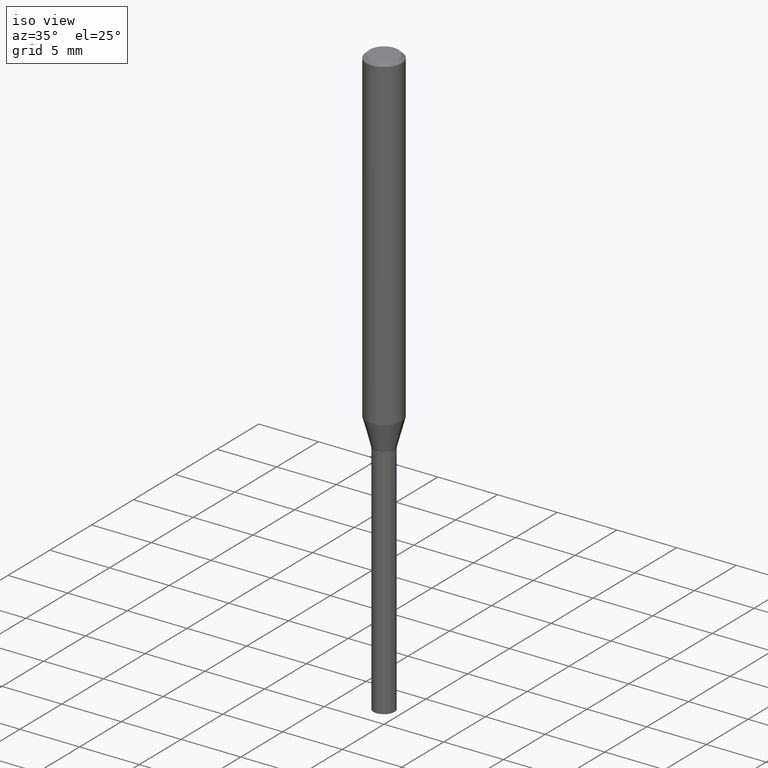
[diagram: clean part render]
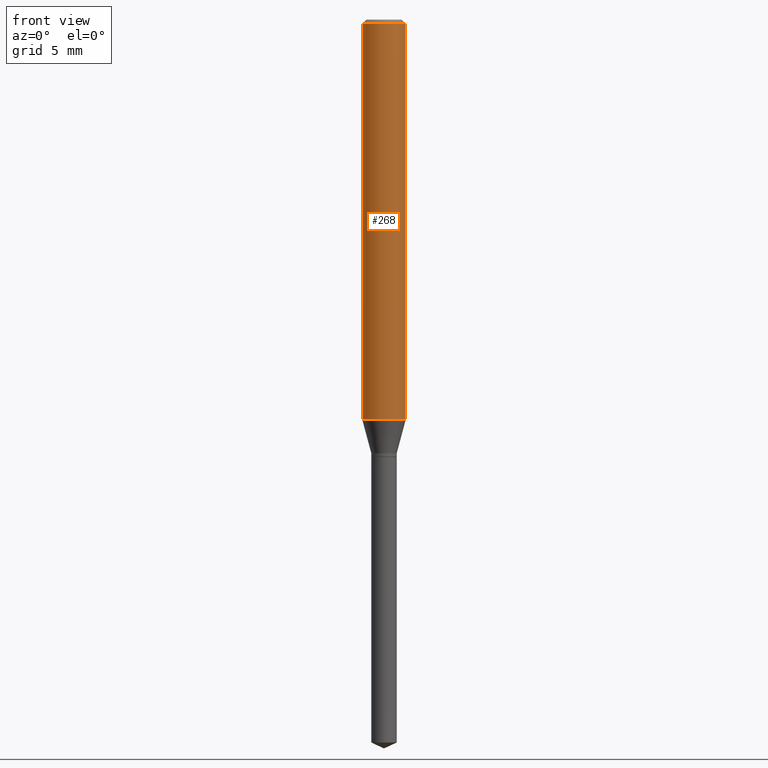
[diagram: tour spotlight — one face highlighted and labeled with its STEP entity id]
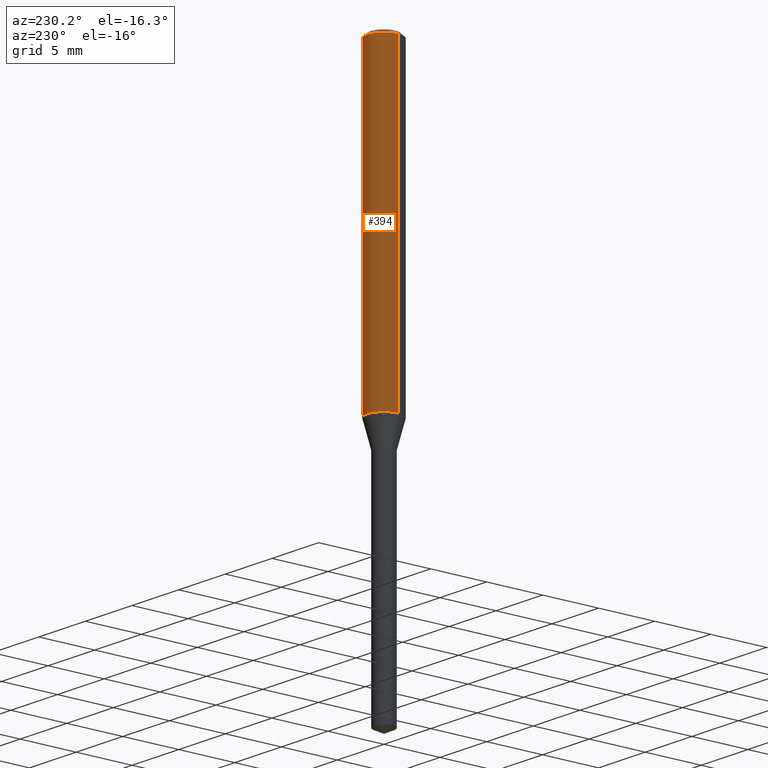
[diagram: tour spotlight — one face highlighted and labeled with its STEP entity id]
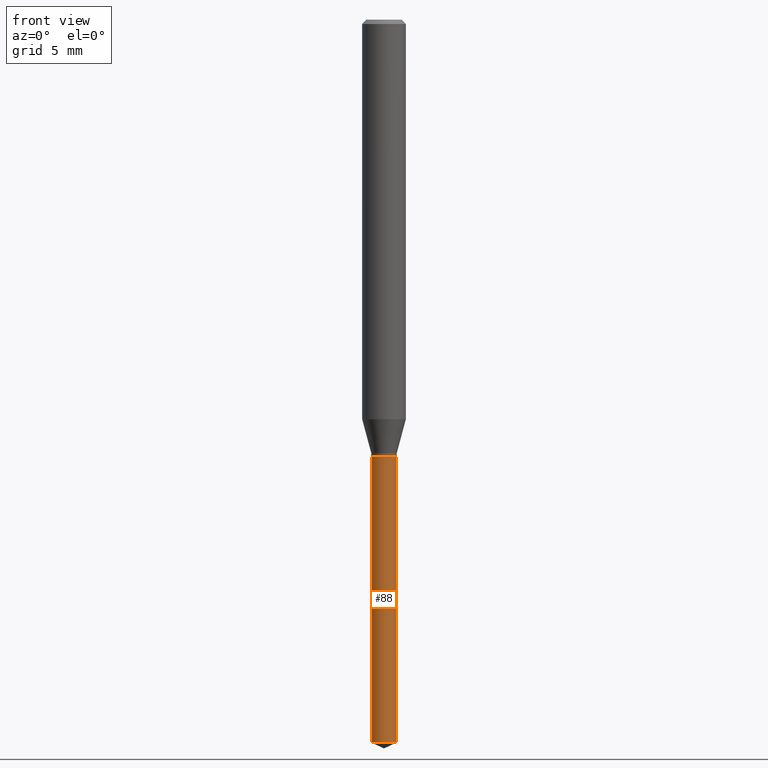
[diagram: tour spotlight — one face highlighted and labeled with its STEP entity id]
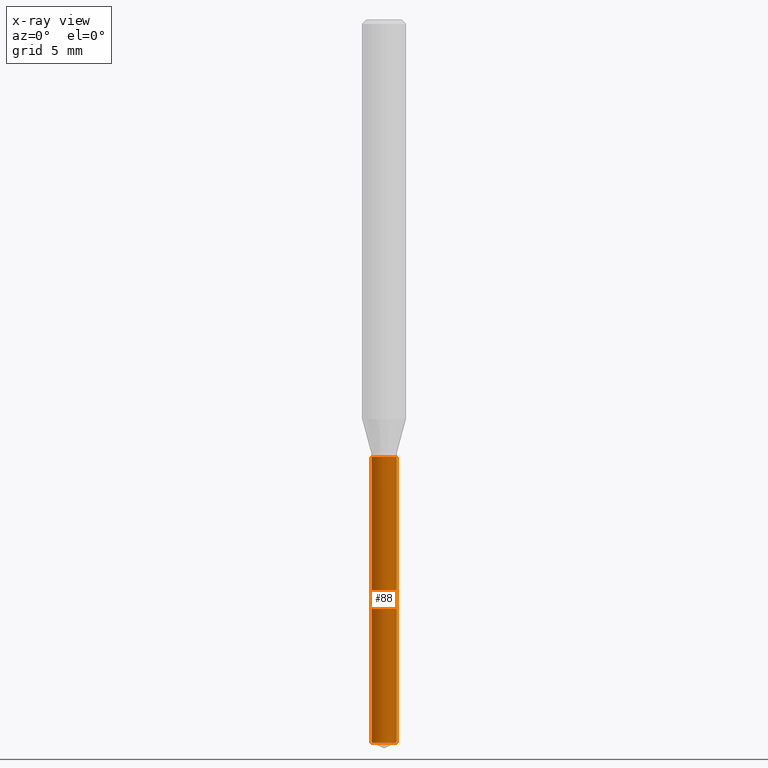
[diagram: x-ray of the same camera — body ghosted, this tour face saturated]
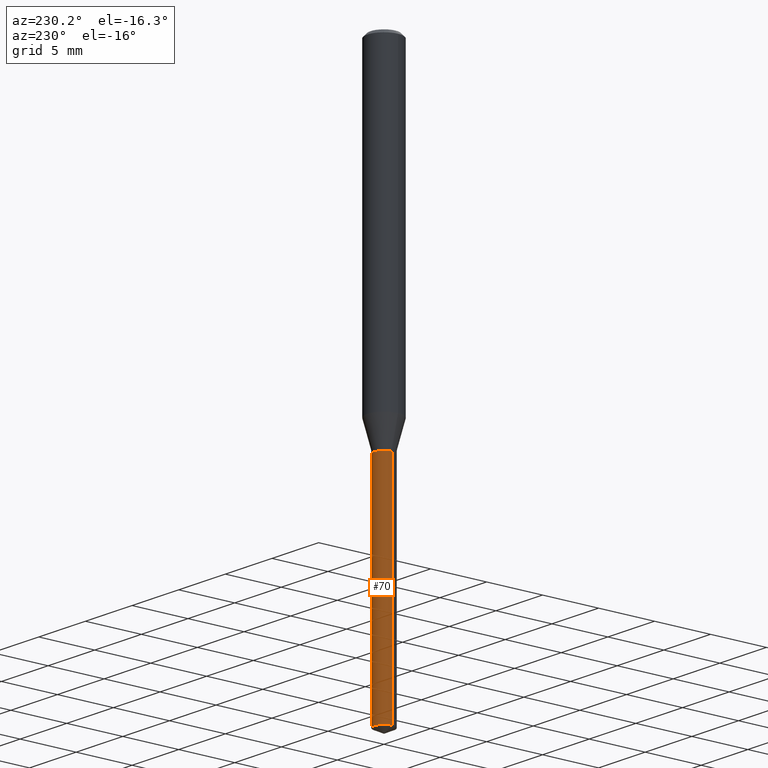
[diagram: tour spotlight — one face highlighted and labeled with its STEP entity id]
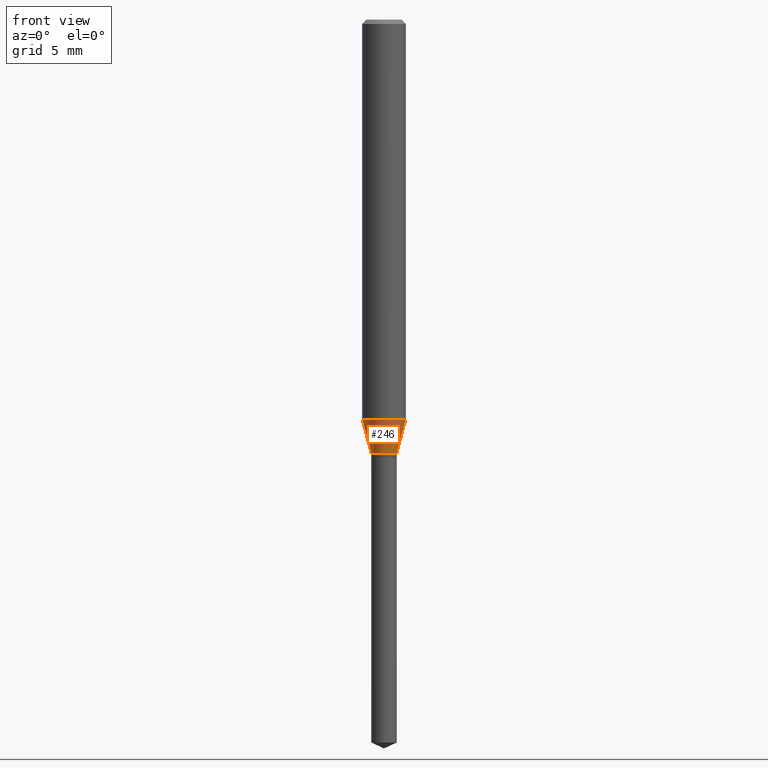
[diagram: tour spotlight — one face highlighted and labeled with its STEP entity id]
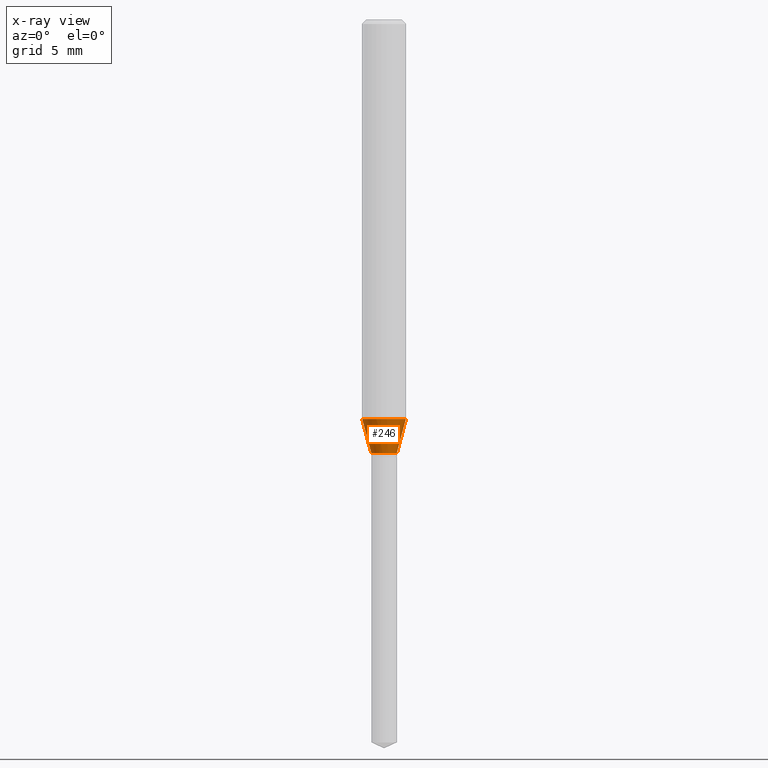
[diagram: x-ray of the same camera — body ghosted, this tour face saturated]
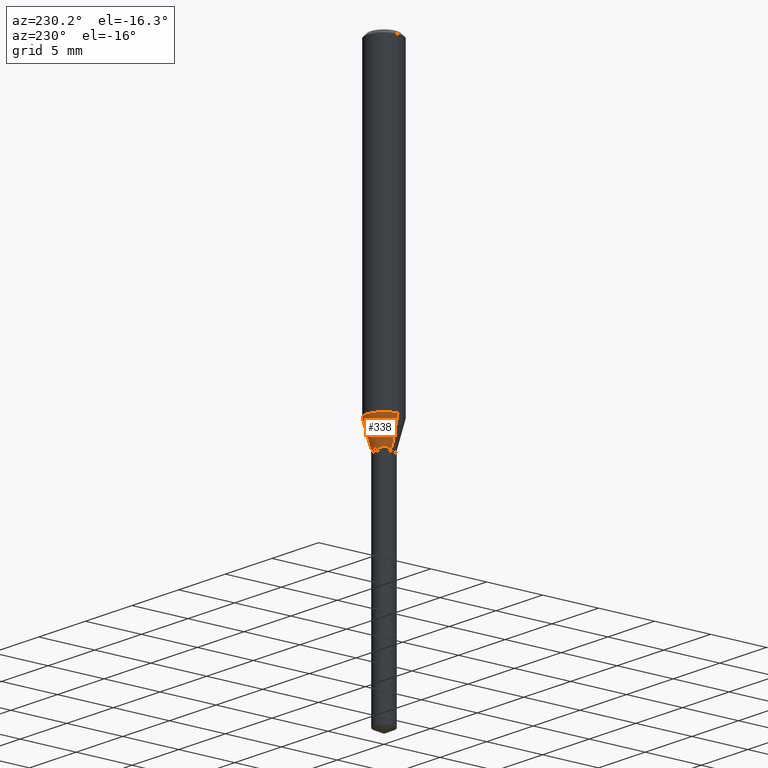
[diagram: tour spotlight — one face highlighted and labeled with its STEP entity id]
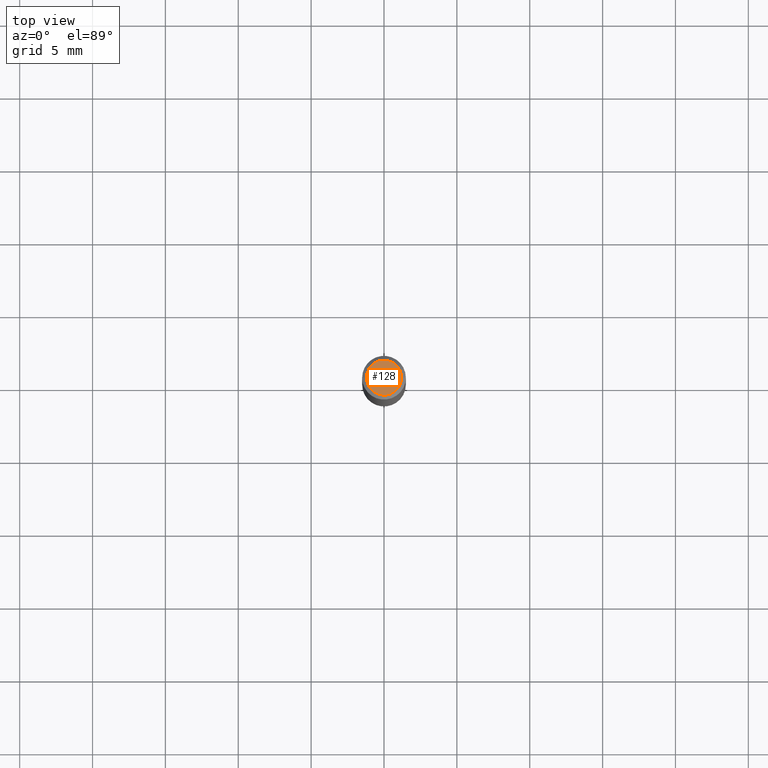
[diagram: tour spotlight — one face highlighted and labeled with its STEP entity id]
A machine part: a face-by-face anatomy tour. The part has 17 B-rep faces; the first image is the clean iso view, then the 7 largest visible faces are spotlighted one at a time (largest first), each with its STEP entity span.

Face 1 — front view, entity #268. In plain terms, the highlighted cylindrical surface (edge-blend (fillet) strip) has radius 1.4999 mm, axis along (-0, 0, 1).
Definition (entity closure, byte-faithful):
#10 = AXIS2_PLACEMENT_3D ( 'NONE', #110, #330, #488 ) ;
#13 = CARTESIAN_POINT ( 'NONE',  ( -0.05905000000000006771, 4.195754854663396409E-16, -2.904631170795525045E-30 ) ) ;
#17 = CARTESIAN_POINT ( 'NONE',  ( 0.05905000000000013710, -4.181368548848415927E-15, -1.079491550133805156 ) ) ;
#26 = VERTEX_POINT ( 'NONE', #134 ) ;
#30 = DIRECTION ( 'NONE',  ( -2.445468806185136877E-29, 3.491481338843145188E-15, 1.000000000000000000 ) ) ;
#35 = AXIS2_PLACEMENT_3D ( 'NONE', #489, #111, #332 ) ;
#48 = VERTEX_POINT ( 'NONE', #17 ) ;
#99 = ORIENTED_EDGE ( 'NONE', *, *, #321, .F. ) ;
#110 = CARTESIAN_POINT ( 'NONE',  ( 0.000000000000000000, 0.000000000000000000, 0.000000000000000000 ) ) ;
#111 = DIRECTION ( 'NONE',  ( -2.445468806185136597E-29, 3.491481338843145583E-15, 1.000000000000000000 ) ) ;
#122 = CIRCLE ( 'NONE', #464, 0.05904999999999999832 ) ;
#134 = CARTESIAN_POINT ( 'NONE',  ( -0.05904999999999999832, -1.485554013205049086E-15, -0.01181000000000007044 ) ) ;
#140 = CIRCLE ( 'NONE', #35, 0.05905000000000013016 ) ;
#145 = CARTESIAN_POINT ( 'NONE',  ( -0.05905000000000013710, -3.349449117264700725E-15, -1.079491550133805156 ) ) ;
#165 = VERTEX_POINT ( 'NONE', #218 ) ;
#173 = EDGE_CURVE ( 'NONE', #256, #48, #140, .T. ) ;
#200 = EDGE_LOOP ( 'NONE', ( #269, #339, #318, #99 ) ) ;
#218 = CARTESIAN_POINT ( 'NONE',  ( 0.05904999999999999832, -4.535783407291118600E-16, -0.01181000000000007044 ) ) ;
#252 = EDGE_CURVE ( 'NONE', #48, #165, #358, .T. ) ;
#256 = VERTEX_POINT ( 'NONE', #145 ) ;
#257 = LINE ( 'NONE', #13, #333 ) ;
#268 = ADVANCED_FACE ( 'NONE', ( #286 ), #484, .T. ) ;
#269 = ORIENTED_EDGE ( 'NONE', *, *, #485, .F. ) ;
#286 = FACE_OUTER_BOUND ( 'NONE', #200, .T. ) ;
#289 = DIRECTION ( 'NONE',  ( -2.445468806185136597E-29, 3.491481338843145583E-15, 1.000000000000000000 ) ) ;
#293 = CARTESIAN_POINT ( 'NONE',  ( 2.888098660104663766E-31, -4.123439461173779647E-17, -0.01181000000000007044 ) ) ;
#318 = ORIENTED_EDGE ( 'NONE', *, *, #252, .T. ) ;
#321 = EDGE_CURVE ( 'NONE', #26, #165, #122, .T. ) ;
#330 = DIRECTION ( 'NONE',  ( -2.445468806185136597E-29, 3.491481338843145583E-15, 1.000000000000000000 ) ) ;
#332 = DIRECTION ( 'NONE',  ( 1.000000000000000000, -6.982962677686265133E-15, 0.000000000000000000 ) ) ;
#333 = VECTOR ( 'NONE', #405, 39.37007874015748143 ) ;
#339 = ORIENTED_EDGE ( 'NONE', *, *, #173, .T. ) ;
#358 = LINE ( 'NONE', #398, #392 ) ;
#392 = VECTOR ( 'NONE', #30, 39.37007874015748143 ) ;
#398 = CARTESIAN_POINT ( 'NONE',  ( 0.05905000000000006771, -4.123439461173745257E-16, 2.879382386107503723E-30 ) ) ;
#405 = DIRECTION ( 'NONE',  ( -2.445468806185136877E-29, 3.491481338843145188E-15, 1.000000000000000000 ) ) ;
#435 = DIRECTION ( 'NONE',  ( 1.000000000000000000, -6.982962677686266711E-15, 0.000000000000000000 ) ) ;
#464 = AXIS2_PLACEMENT_3D ( 'NONE', #293, #289, #435 ) ;
#484 = CYLINDRICAL_SURFACE ( 'NONE', #10, 0.05905000000000006771 ) ;
#485 = EDGE_CURVE ( 'NONE', #256, #26, #257, .T. ) ;
#488 = DIRECTION ( 'NONE',  ( 1.000000000000000000, -6.982962677686266711E-15, 4.876176775795936353E-29 ) ) ;
#489 = CARTESIAN_POINT ( 'NONE',  ( 2.639862912392659236E-29, -3.769024602731041007E-15, -1.079491550133805156 ) ) ;

Face 2 — auxiliary view, entity #394. In plain terms, the highlighted cylindrical surface (edge-blend (fillet) strip) has radius 1.4999 mm, axis along (-0, 0, 1).
Definition (entity closure, byte-faithful):
#2 = DIRECTION ( 'NONE',  ( 1.000000000000000000, -6.982962677686265133E-15, 0.000000000000000000 ) ) ;
#13 = CARTESIAN_POINT ( 'NONE',  ( -0.05905000000000006771, 4.195754854663396409E-16, -2.904631170795525045E-30 ) ) ;
#17 = CARTESIAN_POINT ( 'NONE',  ( 0.05905000000000013710, -4.181368548848415927E-15, -1.079491550133805156 ) ) ;
#21 = EDGE_LOOP ( 'NONE', ( #421, #357, #277, #172 ) ) ;
#26 = VERTEX_POINT ( 'NONE', #134 ) ;
#30 = DIRECTION ( 'NONE',  ( -2.445468806185136877E-29, 3.491481338843145188E-15, 1.000000000000000000 ) ) ;
#33 = DIRECTION ( 'NONE',  ( 1.000000000000000000, -6.982962677686266711E-15, 4.876176775795936353E-29 ) ) ;
#34 = EDGE_CURVE ( 'NONE', #165, #26, #266, .T. ) ;
#46 = CARTESIAN_POINT ( 'NONE',  ( 2.639862912392659236E-29, -3.769024602731041007E-15, -1.079491550133805156 ) ) ;
#48 = VERTEX_POINT ( 'NONE', #17 ) ;
#61 = DIRECTION ( 'NONE',  ( 1.000000000000000000, -6.982962677686266711E-15, 0.000000000000000000 ) ) ;
#63 = AXIS2_PLACEMENT_3D ( 'NONE', #391, #234, #61 ) ;
#98 = CIRCLE ( 'NONE', #272, 0.05905000000000013016 ) ;
#134 = CARTESIAN_POINT ( 'NONE',  ( -0.05904999999999999832, -1.485554013205049086E-15, -0.01181000000000007044 ) ) ;
#145 = CARTESIAN_POINT ( 'NONE',  ( -0.05905000000000013710, -3.349449117264700725E-15, -1.079491550133805156 ) ) ;
#165 = VERTEX_POINT ( 'NONE', #218 ) ;
#172 = ORIENTED_EDGE ( 'NONE', *, *, #252, .F. ) ;
#177 = FACE_OUTER_BOUND ( 'NONE', #21, .T. ) ;
#187 = EDGE_CURVE ( 'NONE', #48, #256, #98, .T. ) ;
#213 = CYLINDRICAL_SURFACE ( 'NONE', #287, 0.05905000000000006771 ) ;
#218 = CARTESIAN_POINT ( 'NONE',  ( 0.05904999999999999832, -4.535783407291118600E-16, -0.01181000000000007044 ) ) ;
#234 = DIRECTION ( 'NONE',  ( -2.445468806185136597E-29, 3.491481338843145583E-15, 1.000000000000000000 ) ) ;
#251 = DIRECTION ( 'NONE',  ( -2.445468806185136597E-29, 3.491481338843145583E-15, 1.000000000000000000 ) ) ;
#252 = EDGE_CURVE ( 'NONE', #48, #165, #358, .T. ) ;
#256 = VERTEX_POINT ( 'NONE', #145 ) ;
#257 = LINE ( 'NONE', #13, #333 ) ;
#266 = CIRCLE ( 'NONE', #63, 0.05904999999999999832 ) ;
#272 = AXIS2_PLACEMENT_3D ( 'NONE', #46, #251, #2 ) ;
#277 = ORIENTED_EDGE ( 'NONE', *, *, #34, .F. ) ;
#287 = AXIS2_PLACEMENT_3D ( 'NONE', #323, #362, #33 ) ;
#323 = CARTESIAN_POINT ( 'NONE',  ( 0.000000000000000000, 0.000000000000000000, 0.000000000000000000 ) ) ;
#333 = VECTOR ( 'NONE', #405, 39.37007874015748143 ) ;
#357 = ORIENTED_EDGE ( 'NONE', *, *, #485, .T. ) ;
#358 = LINE ( 'NONE', #398, #392 ) ;
#362 = DIRECTION ( 'NONE',  ( -2.445468806185136597E-29, 3.491481338843145583E-15, 1.000000000000000000 ) ) ;
#391 = CARTESIAN_POINT ( 'NONE',  ( 2.888098660104663766E-31, -4.123439461173779647E-17, -0.01181000000000007044 ) ) ;
#392 = VECTOR ( 'NONE', #30, 39.37007874015748143 ) ;
#394 = ADVANCED_FACE ( 'NONE', ( #177 ), #213, .T. ) ;
#398 = CARTESIAN_POINT ( 'NONE',  ( 0.05905000000000006771, -4.123439461173745257E-16, 2.879382386107503723E-30 ) ) ;
#405 = DIRECTION ( 'NONE',  ( -2.445468806185136877E-29, 3.491481338843145188E-15, 1.000000000000000000 ) ) ;
#421 = ORIENTED_EDGE ( 'NONE', *, *, #187, .T. ) ;
#485 = EDGE_CURVE ( 'NONE', #256, #26, #257, .T. ) ;

Face 3 — front view, entity #88. An x-ray twin of the same camera follows (body ghosted, this face saturated) — the face is partly hidden behind the body. In plain terms, the highlighted cylindrical surface (edge-blend (fillet) strip) has radius 0.875 mm, axis along (-0, 0, 1).
Definition (entity closure, byte-faithful):
#32 = CARTESIAN_POINT ( 'NONE',  ( 0.03445000000000000145, -7.059201620864807415E-15, -1.952935701176560679 ) ) ;
#39 = DIRECTION ( 'NONE',  ( 1.000000000000000000, -6.982962677686265922E-15, 0.000000000000000000 ) ) ;
#49 = EDGE_CURVE ( 'NONE', #472, #229, #144, .T. ) ;
#50 = ORIENTED_EDGE ( 'NONE', *, *, #343, .F. ) ;
#67 = FACE_OUTER_BOUND ( 'NONE', #135, .T. ) ;
#88 = ADVANCED_FACE ( 'NONE', ( #67 ), #220, .T. ) ;
#113 = CIRCLE ( 'NONE', #149, 0.03445000000000000145 ) ;
#114 = DIRECTION ( 'NONE',  ( -2.445468806185136597E-29, 3.491481338843145583E-15, 1.000000000000000000 ) ) ;
#124 = CARTESIAN_POINT ( 'NONE',  ( -0.03445000000000000145, -6.573856584149161170E-15, -1.952935701176560679 ) ) ;
#135 = EDGE_LOOP ( 'NONE', ( #50, #450, #336, #475 ) ) ;
#144 = CIRCLE ( 'NONE', #471, 0.03445000000000000145 ) ;
#149 = AXIS2_PLACEMENT_3D ( 'NONE', #181, #114, #250 ) ;
#181 = CARTESIAN_POINT ( 'NONE',  ( 4.775843337712576806E-29, -6.818638556618515546E-15, -1.952935701176560679 ) ) ;
#207 = VERTEX_POINT ( 'NONE', #124 ) ;
#209 = CARTESIAN_POINT ( 'NONE',  ( 0.03445000000000000145, -4.366097414223353186E-15, -1.181600000000000206 ) ) ;
#217 = LINE ( 'NONE', #366, #243 ) ;
#220 = CYLINDRICAL_SURFACE ( 'NONE', #233, 0.03445000000000000145 ) ;
#229 = VERTEX_POINT ( 'NONE', #209 ) ;
#233 = AXIS2_PLACEMENT_3D ( 'NONE', #294, #337, #39 ) ;
#243 = VECTOR ( 'NONE', #360, 39.37007874015748143 ) ;
#250 = DIRECTION ( 'NONE',  ( 1.000000000000000000, -6.982962677686280121E-15, 0.000000000000000000 ) ) ;
#267 = DIRECTION ( 'NONE',  ( -2.445468806185136877E-29, 3.491481338843145188E-15, 1.000000000000000000 ) ) ;
#294 = CARTESIAN_POINT ( 'NONE',  ( 2.889565941388357118E-29, -4.125534349977060528E-15, -1.181599999999999984 ) ) ;
#314 = VERTEX_POINT ( 'NONE', #32 ) ;
#336 = ORIENTED_EDGE ( 'NONE', *, *, #457, .T. ) ;
#337 = DIRECTION ( 'NONE',  ( -2.445468806185136597E-29, 3.491481338843145583E-15, 1.000000000000000000 ) ) ;
#341 = VECTOR ( 'NONE', #267, 39.37007874015748143 ) ;
#343 = EDGE_CURVE ( 'NONE', #207, #472, #217, .T. ) ;
#350 = DIRECTION ( 'NONE',  ( -2.445468806185136597E-29, 3.491481338843145583E-15, 1.000000000000000000 ) ) ;
#356 = EDGE_CURVE ( 'NONE', #207, #314, #113, .T. ) ;
#360 = DIRECTION ( 'NONE',  ( -2.445468806185136877E-29, 3.491481338843145188E-15, 1.000000000000000000 ) ) ;
#366 = CARTESIAN_POINT ( 'NONE',  ( -0.03445000000000000145, -3.880752377507706151E-15, -1.181599999999999984 ) ) ;
#389 = CARTESIAN_POINT ( 'NONE',  ( 2.889565941388357678E-29, -4.125534349977061317E-15, -1.181600000000000206 ) ) ;
#416 = CARTESIAN_POINT ( 'NONE',  ( 0.03445000000000000145, -4.366097414223352397E-15, -1.181599999999999984 ) ) ;
#444 = CARTESIAN_POINT ( 'NONE',  ( -0.03445000000000000145, -5.227304480828433661E-15, -1.181600000000000206 ) ) ;
#450 = ORIENTED_EDGE ( 'NONE', *, *, #356, .T. ) ;
#453 = DIRECTION ( 'NONE',  ( 1.000000000000000000, -6.982962677686265922E-15, 0.000000000000000000 ) ) ;
#457 = EDGE_CURVE ( 'NONE', #314, #229, #459, .T. ) ;
#459 = LINE ( 'NONE', #416, #341 ) ;
#471 = AXIS2_PLACEMENT_3D ( 'NONE', #389, #350, #453 ) ;
#472 = VERTEX_POINT ( 'NONE', #444 ) ;
#475 = ORIENTED_EDGE ( 'NONE', *, *, #49, .F. ) ;

Face 4 — auxiliary view, entity #70. In plain terms, the highlighted cylindrical surface (edge-blend (fillet) strip) has radius 0.875 mm, axis along (-0, 0, 1).
Definition (entity closure, byte-faithful):
#9 = CIRCLE ( 'NONE', #428, 0.03445000000000000145 ) ;
#32 = CARTESIAN_POINT ( 'NONE',  ( 0.03445000000000000145, -7.059201620864807415E-15, -1.952935701176560679 ) ) ;
#70 = ADVANCED_FACE ( 'NONE', ( #120 ), #211, .T. ) ;
#120 = FACE_OUTER_BOUND ( 'NONE', #395, .T. ) ;
#121 = ORIENTED_EDGE ( 'NONE', *, *, #432, .F. ) ;
#124 = CARTESIAN_POINT ( 'NONE',  ( -0.03445000000000000145, -6.573856584149161170E-15, -1.952935701176560679 ) ) ;
#207 = VERTEX_POINT ( 'NONE', #124 ) ;
#209 = CARTESIAN_POINT ( 'NONE',  ( 0.03445000000000000145, -4.366097414223353186E-15, -1.181600000000000206 ) ) ;
#211 = CYLINDRICAL_SURFACE ( 'NONE', #253, 0.03445000000000000145 ) ;
#217 = LINE ( 'NONE', #366, #243 ) ;
#229 = VERTEX_POINT ( 'NONE', #209 ) ;
#242 = CARTESIAN_POINT ( 'NONE',  ( 4.775843337712576806E-29, -6.818638556618515546E-15, -1.952935701176560679 ) ) ;
#243 = VECTOR ( 'NONE', #360, 39.37007874015748143 ) ;
#248 = DIRECTION ( 'NONE',  ( 1.000000000000000000, -6.982962677686265922E-15, 0.000000000000000000 ) ) ;
#249 = EDGE_CURVE ( 'NONE', #314, #207, #9, .T. ) ;
#253 = AXIS2_PLACEMENT_3D ( 'NONE', #443, #258, #248 ) ;
#258 = DIRECTION ( 'NONE',  ( -2.445468806185136597E-29, 3.491481338843145583E-15, 1.000000000000000000 ) ) ;
#265 = ORIENTED_EDGE ( 'NONE', *, *, #343, .T. ) ;
#267 = DIRECTION ( 'NONE',  ( -2.445468806185136877E-29, 3.491481338843145188E-15, 1.000000000000000000 ) ) ;
#301 = CARTESIAN_POINT ( 'NONE',  ( 2.889565941388357678E-29, -4.125534349977061317E-15, -1.181600000000000206 ) ) ;
#314 = VERTEX_POINT ( 'NONE', #32 ) ;
#327 = DIRECTION ( 'NONE',  ( -2.445468806185136597E-29, 3.491481338843145583E-15, 1.000000000000000000 ) ) ;
#341 = VECTOR ( 'NONE', #267, 39.37007874015748143 ) ;
#343 = EDGE_CURVE ( 'NONE', #207, #472, #217, .T. ) ;
#344 = DIRECTION ( 'NONE',  ( -2.445468806185136597E-29, 3.491481338843145583E-15, 1.000000000000000000 ) ) ;
#355 = ORIENTED_EDGE ( 'NONE', *, *, #249, .T. ) ;
#360 = DIRECTION ( 'NONE',  ( -2.445468806185136877E-29, 3.491481338843145188E-15, 1.000000000000000000 ) ) ;
#366 = CARTESIAN_POINT ( 'NONE',  ( -0.03445000000000000145, -3.880752377507706151E-15, -1.181599999999999984 ) ) ;
#372 = CIRCLE ( 'NONE', #411, 0.03445000000000000145 ) ;
#395 = EDGE_LOOP ( 'NONE', ( #355, #265, #121, #412 ) ) ;
#411 = AXIS2_PLACEMENT_3D ( 'NONE', #301, #344, #413 ) ;
#412 = ORIENTED_EDGE ( 'NONE', *, *, #457, .F. ) ;
#413 = DIRECTION ( 'NONE',  ( 1.000000000000000000, -6.982962677686265922E-15, 0.000000000000000000 ) ) ;
#416 = CARTESIAN_POINT ( 'NONE',  ( 0.03445000000000000145, -4.366097414223352397E-15, -1.181599999999999984 ) ) ;
#428 = AXIS2_PLACEMENT_3D ( 'NONE', #242, #327, #479 ) ;
#432 = EDGE_CURVE ( 'NONE', #229, #472, #372, .T. ) ;
#443 = CARTESIAN_POINT ( 'NONE',  ( 2.889565941388357118E-29, -4.125534349977060528E-15, -1.181599999999999984 ) ) ;
#444 = CARTESIAN_POINT ( 'NONE',  ( -0.03445000000000000145, -5.227304480828433661E-15, -1.181600000000000206 ) ) ;
#457 = EDGE_CURVE ( 'NONE', #314, #229, #459, .T. ) ;
#459 = LINE ( 'NONE', #416, #341 ) ;
#472 = VERTEX_POINT ( 'NONE', #444 ) ;
#479 = DIRECTION ( 'NONE',  ( 1.000000000000000000, -6.982962677686280121E-15, 0.000000000000000000 ) ) ;

Face 5 — front view, entity #246. An x-ray twin of the same camera follows (body ghosted, this face saturated) — the face is partly hidden behind the body. In plain terms, the highlighted conical surface has half-angle 15 deg.
Definition (entity closure, byte-faithful):
#6 = CARTESIAN_POINT ( 'NONE',  ( 0.03445000000000000839, -4.330135156433267846E-15, -1.171299999999999786 ) ) ;
#17 = CARTESIAN_POINT ( 'NONE',  ( 0.05905000000000013710, -4.181368548848415927E-15, -1.079491550133805156 ) ) ;
#35 = AXIS2_PLACEMENT_3D ( 'NONE', #489, #111, #332 ) ;
#48 = VERTEX_POINT ( 'NONE', #17 ) ;
#72 = VECTOR ( 'NONE', #227, 39.37007874015748854 ) ;
#85 = CIRCLE ( 'NONE', #206, 0.03445000000000000839 ) ;
#103 = DIRECTION ( 'NONE',  ( 1.000000000000000000, -6.982962677686264344E-15, 0.000000000000000000 ) ) ;
#105 = EDGE_CURVE ( 'NONE', #417, #226, #85, .T. ) ;
#111 = DIRECTION ( 'NONE',  ( -2.445468806185136597E-29, 3.491481338843145583E-15, 1.000000000000000000 ) ) ;
#119 = CARTESIAN_POINT ( 'NONE',  ( -0.03445000000000000839, -3.844790119717621600E-15, -1.171299999999999786 ) ) ;
#125 = LINE ( 'NONE', #6, #72 ) ;
#140 = CIRCLE ( 'NONE', #35, 0.05905000000000013016 ) ;
#141 = CARTESIAN_POINT ( 'NONE',  ( 0.03445000000000000839, -4.330135156433267846E-15, -1.171299999999999786 ) ) ;
#145 = CARTESIAN_POINT ( 'NONE',  ( -0.05905000000000013710, -3.349449117264700725E-15, -1.079491550133805156 ) ) ;
#157 = LINE ( 'NONE', #119, #312 ) ;
#173 = EDGE_CURVE ( 'NONE', #256, #48, #140, .T. ) ;
#179 = FACE_OUTER_BOUND ( 'NONE', #373, .T. ) ;
#206 = AXIS2_PLACEMENT_3D ( 'NONE', #445, #222, #371 ) ;
#214 = DIRECTION ( 'NONE',  ( -2.445468806185136597E-29, 3.491481338843145583E-15, 1.000000000000000000 ) ) ;
#216 = AXIS2_PLACEMENT_3D ( 'NONE', #325, #214, #103 ) ;
#222 = DIRECTION ( 'NONE',  ( -2.445468806185136597E-29, 3.491481338843145583E-15, 1.000000000000000000 ) ) ;
#226 = VERTEX_POINT ( 'NONE', #141 ) ;
#227 = DIRECTION ( 'NONE',  ( 0.2588190451025211281, 1.565188264969622954E-15, 0.9659258262890679791 ) ) ;
#236 = ORIENTED_EDGE ( 'NONE', *, *, #451, .T. ) ;
#246 = ADVANCED_FACE ( 'NONE', ( #179 ), #474, .T. ) ;
#256 = VERTEX_POINT ( 'NONE', #145 ) ;
#307 = CARTESIAN_POINT ( 'NONE',  ( -0.03445000000000000839, -3.861898378277953913E-15, -1.171299999999999786 ) ) ;
#312 = VECTOR ( 'NONE', #409, 39.37007874015748854 ) ;
#325 = CARTESIAN_POINT ( 'NONE',  ( 2.864377612684650340E-29, -4.089572092186975977E-15, -1.171299999999999786 ) ) ;
#332 = DIRECTION ( 'NONE',  ( 1.000000000000000000, -6.982962677686265133E-15, 0.000000000000000000 ) ) ;
#354 = ORIENTED_EDGE ( 'NONE', *, *, #173, .F. ) ;
#371 = DIRECTION ( 'NONE',  ( 1.000000000000000000, -6.982962677686264344E-15, 0.000000000000000000 ) ) ;
#373 = EDGE_LOOP ( 'NONE', ( #407, #458, #236, #354 ) ) ;
#401 = EDGE_CURVE ( 'NONE', #417, #256, #157, .T. ) ;
#407 = ORIENTED_EDGE ( 'NONE', *, *, #401, .F. ) ;
#409 = DIRECTION ( 'NONE',  ( -0.2588190451025211281, 5.211531920934547886E-15, 0.9659258262890679791 ) ) ;
#417 = VERTEX_POINT ( 'NONE', #307 ) ;
#445 = CARTESIAN_POINT ( 'NONE',  ( 2.864377612684650340E-29, -4.089572092186975977E-15, -1.171299999999999786 ) ) ;
#451 = EDGE_CURVE ( 'NONE', #226, #48, #125, .T. ) ;
#458 = ORIENTED_EDGE ( 'NONE', *, *, #105, .T. ) ;
#474 = CONICAL_SURFACE ( 'NONE', #216, 0.03445000000000000839, 0.2617993877991498519 ) ;
#489 = CARTESIAN_POINT ( 'NONE',  ( 2.639862912392659236E-29, -3.769024602731041007E-15, -1.079491550133805156 ) ) ;

Face 6 — auxiliary view, entity #338. In plain terms, the highlighted conical surface has half-angle 15 deg.
Definition (entity closure, byte-faithful):
#2 = DIRECTION ( 'NONE',  ( 1.000000000000000000, -6.982962677686265133E-15, 0.000000000000000000 ) ) ;
#6 = CARTESIAN_POINT ( 'NONE',  ( 0.03445000000000000839, -4.330135156433267846E-15, -1.171299999999999786 ) ) ;
#17 = CARTESIAN_POINT ( 'NONE',  ( 0.05905000000000013710, -4.181368548848415927E-15, -1.079491550133805156 ) ) ;
#37 = EDGE_CURVE ( 'NONE', #226, #417, #107, .T. ) ;
#38 = FACE_OUTER_BOUND ( 'NONE', #447, .T. ) ;
#46 = CARTESIAN_POINT ( 'NONE',  ( 2.639862912392659236E-29, -3.769024602731041007E-15, -1.079491550133805156 ) ) ;
#48 = VERTEX_POINT ( 'NONE', #17 ) ;
#72 = VECTOR ( 'NONE', #227, 39.37007874015748854 ) ;
#73 = DIRECTION ( 'NONE',  ( 1.000000000000000000, -6.982962677686264344E-15, 0.000000000000000000 ) ) ;
#98 = CIRCLE ( 'NONE', #272, 0.05905000000000013016 ) ;
#107 = CIRCLE ( 'NONE', #387, 0.03445000000000000839 ) ;
#109 = CARTESIAN_POINT ( 'NONE',  ( 2.864377612684650340E-29, -4.089572092186975977E-15, -1.171299999999999786 ) ) ;
#119 = CARTESIAN_POINT ( 'NONE',  ( -0.03445000000000000839, -3.844790119717621600E-15, -1.171299999999999786 ) ) ;
#125 = LINE ( 'NONE', #6, #72 ) ;
#141 = CARTESIAN_POINT ( 'NONE',  ( 0.03445000000000000839, -4.330135156433267846E-15, -1.171299999999999786 ) ) ;
#142 = AXIS2_PLACEMENT_3D ( 'NONE', #109, #247, #73 ) ;
#145 = CARTESIAN_POINT ( 'NONE',  ( -0.05905000000000013710, -3.349449117264700725E-15, -1.079491550133805156 ) ) ;
#157 = LINE ( 'NONE', #119, #312 ) ;
#168 = ORIENTED_EDGE ( 'NONE', *, *, #187, .F. ) ;
#187 = EDGE_CURVE ( 'NONE', #48, #256, #98, .T. ) ;
#226 = VERTEX_POINT ( 'NONE', #141 ) ;
#227 = DIRECTION ( 'NONE',  ( 0.2588190451025211281, 1.565188264969622954E-15, 0.9659258262890679791 ) ) ;
#240 = ORIENTED_EDGE ( 'NONE', *, *, #401, .T. ) ;
#247 = DIRECTION ( 'NONE',  ( -2.445468806185136597E-29, 3.491481338843145583E-15, 1.000000000000000000 ) ) ;
#251 = DIRECTION ( 'NONE',  ( -2.445468806185136597E-29, 3.491481338843145583E-15, 1.000000000000000000 ) ) ;
#256 = VERTEX_POINT ( 'NONE', #145 ) ;
#272 = AXIS2_PLACEMENT_3D ( 'NONE', #46, #251, #2 ) ;
#280 = CONICAL_SURFACE ( 'NONE', #142, 0.03445000000000000839, 0.2617993877991498519 ) ;
#283 = ORIENTED_EDGE ( 'NONE', *, *, #37, .T. ) ;
#284 = DIRECTION ( 'NONE',  ( -2.445468806185136597E-29, 3.491481338843145583E-15, 1.000000000000000000 ) ) ;
#307 = CARTESIAN_POINT ( 'NONE',  ( -0.03445000000000000839, -3.861898378277953913E-15, -1.171299999999999786 ) ) ;
#312 = VECTOR ( 'NONE', #409, 39.37007874015748854 ) ;
#338 = ADVANCED_FACE ( 'NONE', ( #38 ), #280, .T. ) ;
#342 = ORIENTED_EDGE ( 'NONE', *, *, #451, .F. ) ;
#348 = DIRECTION ( 'NONE',  ( 1.000000000000000000, -6.982962677686264344E-15, 0.000000000000000000 ) ) ;
#387 = AXIS2_PLACEMENT_3D ( 'NONE', #477, #284, #348 ) ;
#401 = EDGE_CURVE ( 'NONE', #417, #256, #157, .T. ) ;
#409 = DIRECTION ( 'NONE',  ( -0.2588190451025211281, 5.211531920934547886E-15, 0.9659258262890679791 ) ) ;
#417 = VERTEX_POINT ( 'NONE', #307 ) ;
#447 = EDGE_LOOP ( 'NONE', ( #283, #240, #168, #342 ) ) ;
#451 = EDGE_CURVE ( 'NONE', #226, #48, #125, .T. ) ;
#477 = CARTESIAN_POINT ( 'NONE',  ( 2.864377612684650340E-29, -4.089572092186975977E-15, -1.171299999999999786 ) ) ;

Face 7 — top view, entity #128. In plain terms, the highlighted planar face has unit normal (0, -0, -1).
Definition (entity closure, byte-faithful):
#7 = CARTESIAN_POINT ( 'NONE',  ( 0.04724000000000000421, -3.852183633974369345E-16, -3.380025165621689721E-19 ) ) ;
#43 = FACE_OUTER_BOUND ( 'NONE', #462, .T. ) ;
#44 = ORIENTED_EDGE ( 'NONE', *, *, #288, .T. ) ;
#47 = AXIS2_PLACEMENT_3D ( 'NONE', #191, #400, #78 ) ;
#74 = CARTESIAN_POINT ( 'NONE',  ( 4.132873053354867254E-48, -5.900647395337818946E-34, -1.690012582823346072E-19 ) ) ;
#76 = DIRECTION ( 'NONE',  ( -1.000000000000000000, 6.982962677686265922E-15, -4.876176775795935793E-29 ) ) ;
#78 = DIRECTION ( 'NONE',  ( 1.000000000000000000, -6.982962677686266711E-15, 4.876185090822587894E-29 ) ) ;
#79 = VERTEX_POINT ( 'NONE', #7 ) ;
#81 = PLANE ( 'NONE',  #368 ) ;
#97 = EDGE_CURVE ( 'NONE', #79, #205, #446, .T. ) ;
#128 = ADVANCED_FACE ( 'NONE', ( #43 ), #81, .F. ) ;
#158 = DIRECTION ( 'NONE',  ( 2.438088387897960049E-29, -3.491481338843145188E-15, -1.000000000000000000 ) ) ;
#191 = CARTESIAN_POINT ( 'NONE',  ( 8.265746106709734507E-48, -1.180129479067563789E-33, -3.380025165646692144E-19 ) ) ;
#205 = VERTEX_POINT ( 'NONE', #414 ) ;
#288 = EDGE_CURVE ( 'NONE', #205, #79, #397, .T. ) ;
#291 = CARTESIAN_POINT ( 'NONE',  ( 8.265746106709734507E-48, -1.180129479067563789E-33, -3.380025165646692144E-19 ) ) ;
#305 = ORIENTED_EDGE ( 'NONE', *, *, #97, .T. ) ;
#319 = AXIS2_PLACEMENT_3D ( 'NONE', #291, #437, #433 ) ;
#368 = AXIS2_PLACEMENT_3D ( 'NONE', #74, #158, #76 ) ;
#397 = CIRCLE ( 'NONE', #319, 0.04724000000000000421 ) ;
#400 = DIRECTION ( 'NONE',  ( -2.445468806185136597E-29, 3.491481338843145583E-15, 1.000000000000000000 ) ) ;
#414 = CARTESIAN_POINT ( 'NONE',  ( -0.04724000000000000421, 3.504923541997677355E-16, -3.380025165670481712E-19 ) ) ;
#433 = DIRECTION ( 'NONE',  ( 1.000000000000000000, -6.982962677686266711E-15, 4.876185090822587894E-29 ) ) ;
#437 = DIRECTION ( 'NONE',  ( -2.445468806185136597E-29, 3.491481338843145583E-15, 1.000000000000000000 ) ) ;
#446 = CIRCLE ( 'NONE', #47, 0.04724000000000000421 ) ;
#462 = EDGE_LOOP ( 'NONE', ( #44, #305 ) ) ;